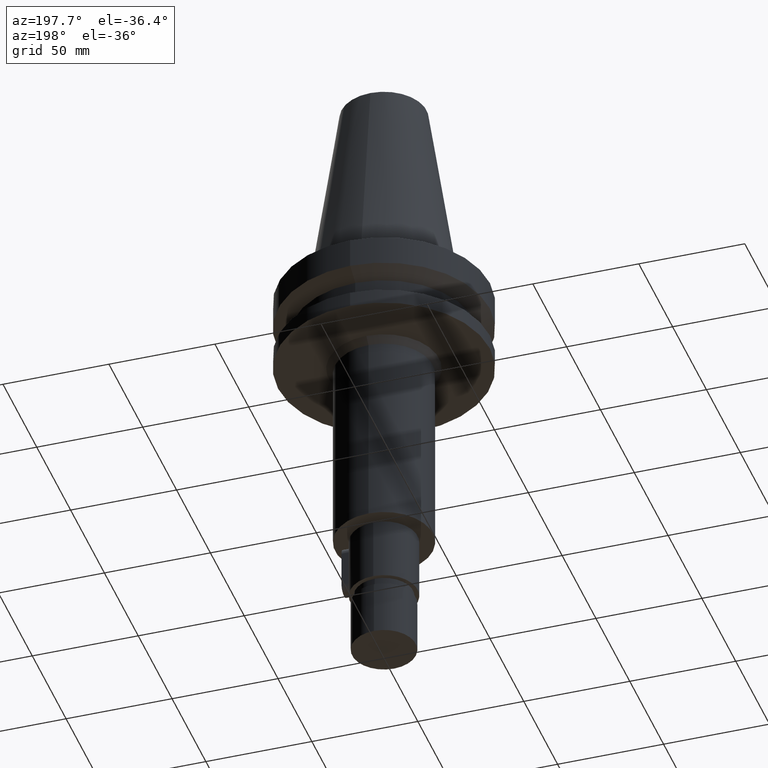
[diagram: clean part render]
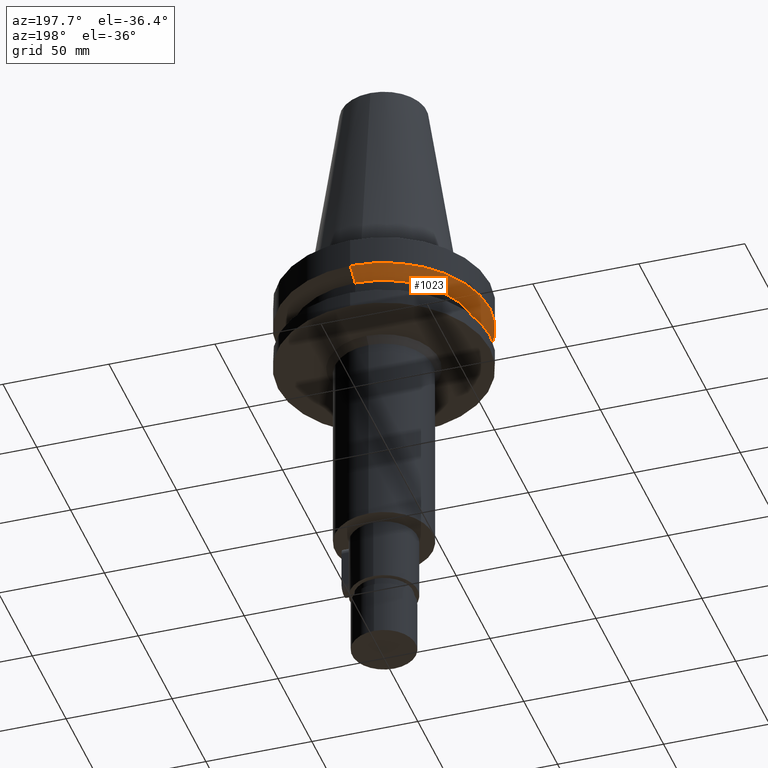
[diagram: same view with one face highlighted and labeled with its STEP entity id]
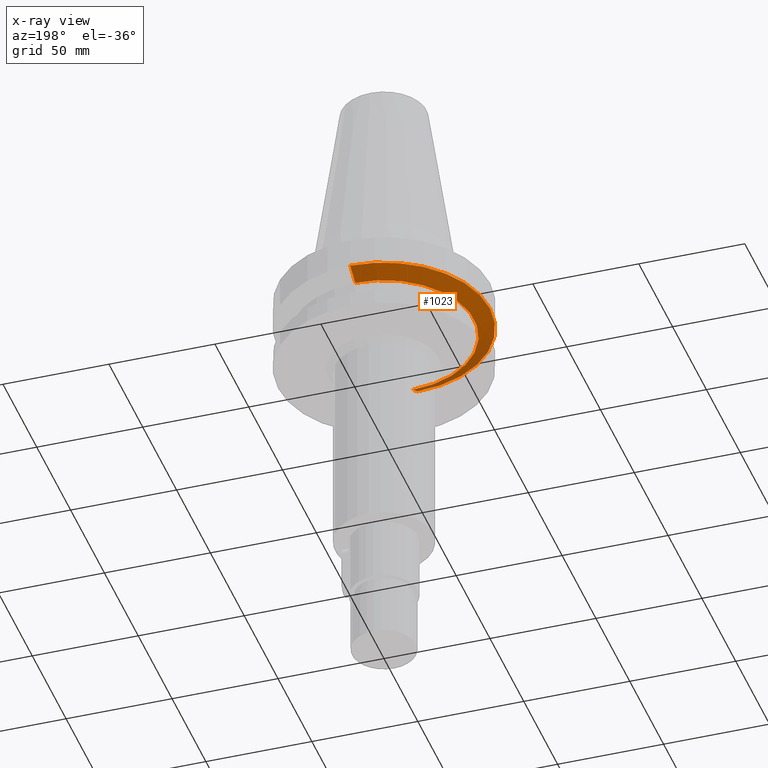
[diagram: x-ray of the same camera — body ghosted, the highlighted face saturated]
A machine part, auxiliary view. The second image highlights one B-rep face of the part: STEP entity #1023.
The next image is the same camera in x-ray: the body ghosted, the highlighted face saturated — about 8% of this face is hidden behind the body in this view.
In plain terms, the highlighted conical surface has half-angle 60 deg.
Its self-contained STEP definition (entity closure, byte-faithful):
#216=CARTESIAN_POINT('',(0.E0,1.006319759054E-14,-1.566269223573E1));
#217=DIRECTION('',(0.E0,0.E0,1.E0));
#218=DIRECTION('',(0.E0,1.E0,0.E0));
#219=AXIS2_PLACEMENT_3D('',#216,#217,#218);
#224=DIRECTION('',(0.E0,8.660254037845E-1,-4.999999999999E-1));
#225=VECTOR('',#224,8.660254037843E0);
#226=CARTESIAN_POINT('',(0.E0,-5.E1,-1.566269223573E1));
#227=LINE('',#226,#225);
#231=CARTESIAN_POINT('',(0.E0,1.006319759054E-14,-1.999281925465E1));
#232=DIRECTION('',(0.E0,0.E0,-1.E0));
#233=DIRECTION('',(0.E0,-1.E0,0.E0));
#234=AXIS2_PLACEMENT_3D('',#231,#232,#233);
#239=DIRECTION('',(0.E0,-8.660254037845E-1,-4.999999999999E-1));
#240=VECTOR('',#239,8.660254037843E0);
#241=CARTESIAN_POINT('',(0.E0,5.E1,-1.566269223573E1));
#242=LINE('',#241,#240);
#734=CARTESIAN_POINT('',(0.E0,5.E1,-1.566269223573E1));
#735=VERTEX_POINT('',#734);
#736=CARTESIAN_POINT('',(1.224646799147E-14,-5.E1,-1.566269223573E1));
#737=VERTEX_POINT('',#736);
#738=CARTESIAN_POINT('',(0.E0,4.25E1,-1.999281925465E1));
#739=VERTEX_POINT('',#738);
#740=CARTESIAN_POINT('',(0.E0,-4.25E1,-1.999281925465E1));
#741=VERTEX_POINT('',#740);
#1009=CARTESIAN_POINT('',(0.E0,1.006319759054E-14,-1.782775574519E1));
#1010=DIRECTION('',(0.E0,0.E0,1.E0));
#1011=DIRECTION('',(0.E0,1.E0,0.E0));
#1012=AXIS2_PLACEMENT_3D('',#1009,#1010,#1011);
#1013=CONICAL_SURFACE('',#1012,4.625E1,6.E1);
#1015=ORIENTED_EDGE('',*,*,#1014,.F.);
#1016=ORIENTED_EDGE('',*,*,#1004,.T.);
#1018=ORIENTED_EDGE('',*,*,#1017,.T.);
#1020=ORIENTED_EDGE('',*,*,#1019,.T.);
#1021=EDGE_LOOP('',(#1015,#1016,#1018,#1020));
#1022=FACE_OUTER_BOUND('',#1021,.F.);
#220=CIRCLE('',#219,5.E1);
#235=CIRCLE('',#234,4.25E1);
#1004=EDGE_CURVE('',#735,#737,#220,.T.);
#1014=EDGE_CURVE('',#735,#739,#242,.T.);
#1017=EDGE_CURVE('',#737,#741,#227,.T.);
#1019=EDGE_CURVE('',#741,#739,#235,.T.);
#1023=ADVANCED_FACE('',(#1022),#1013,.T.);